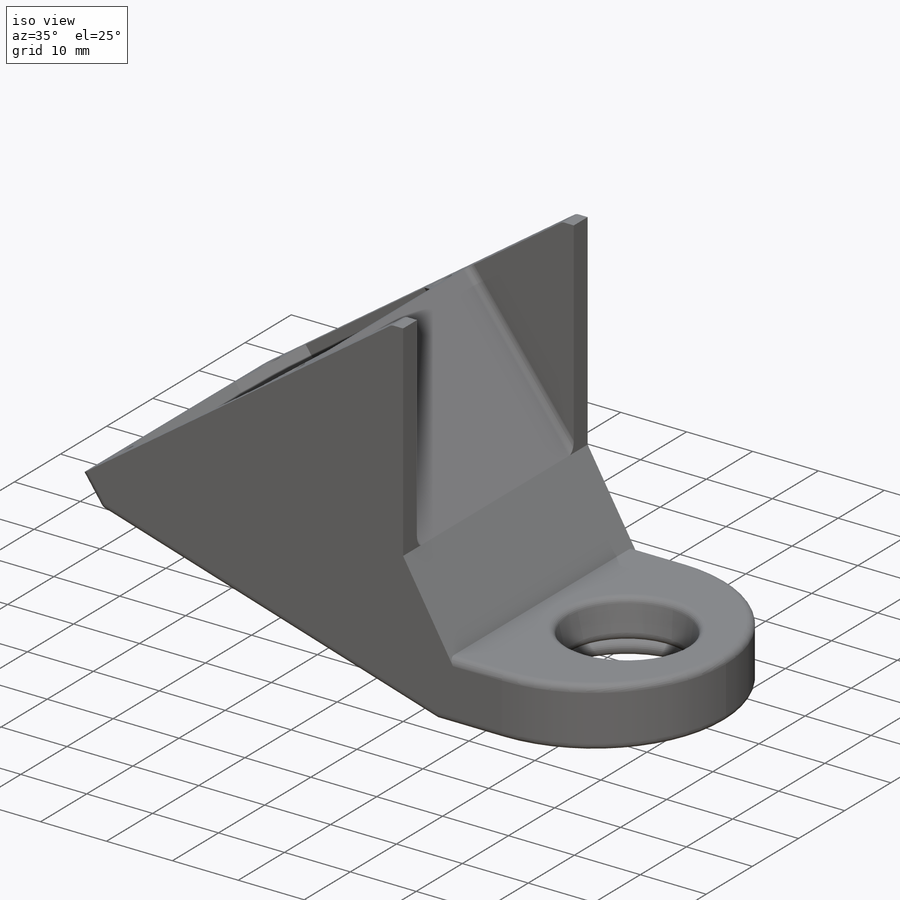
[diagram: iso view]
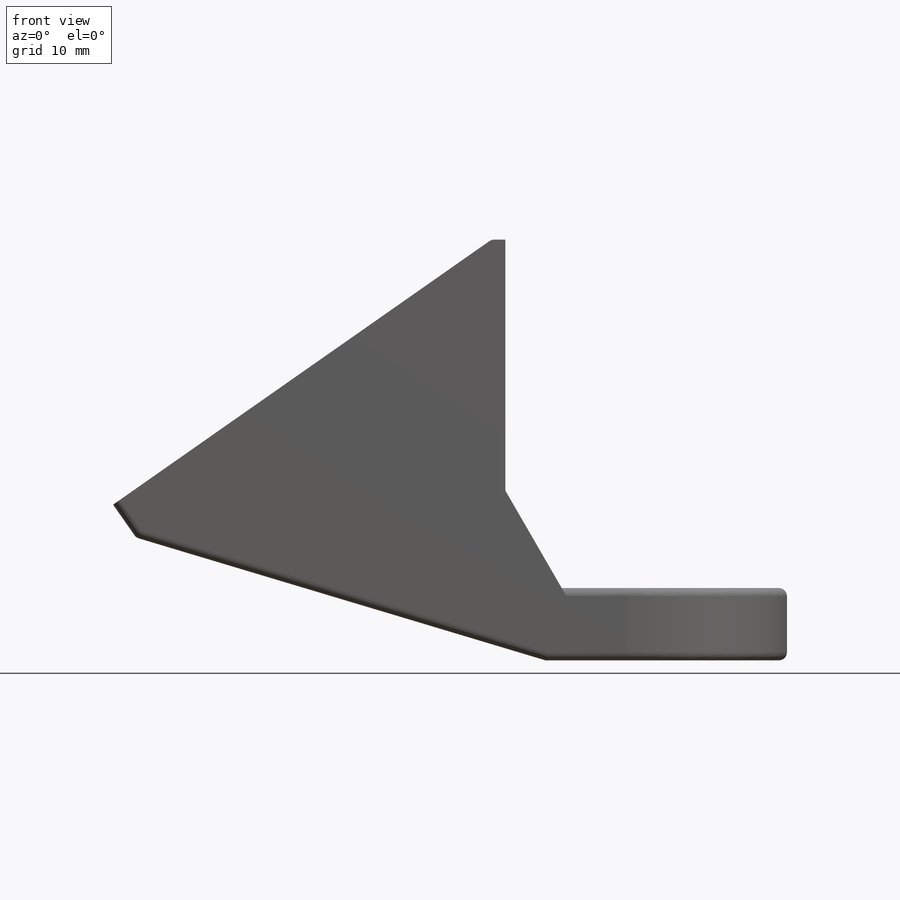
[diagram: front view]
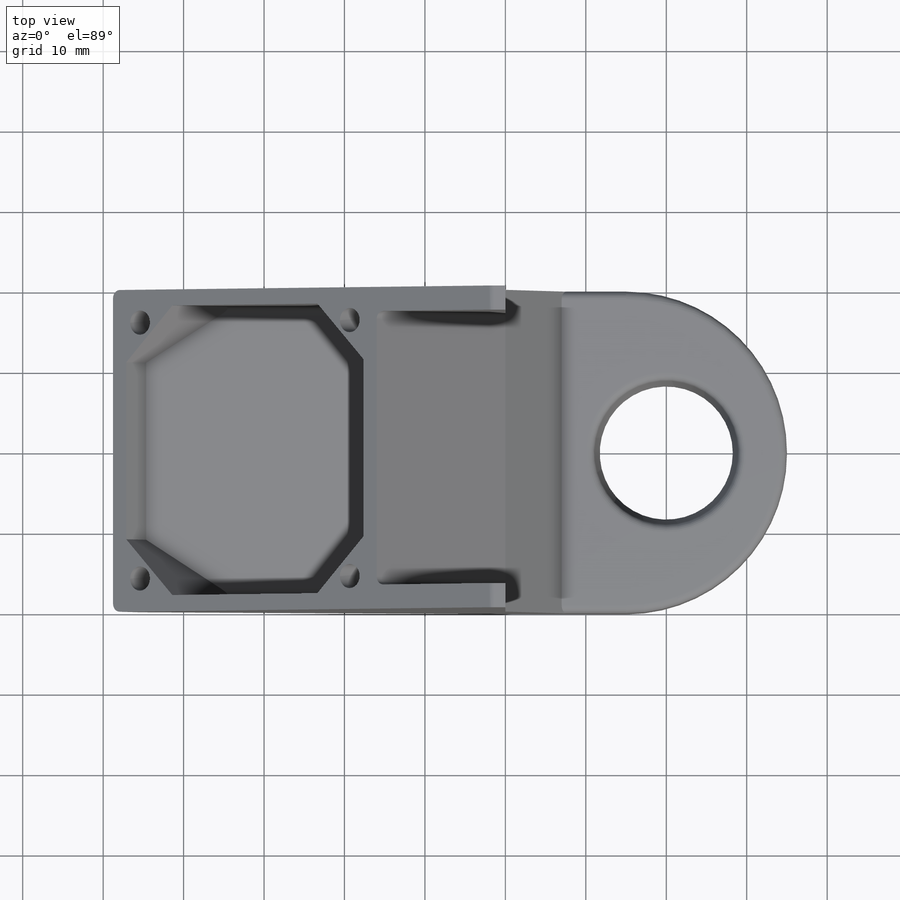
[diagram: top view]
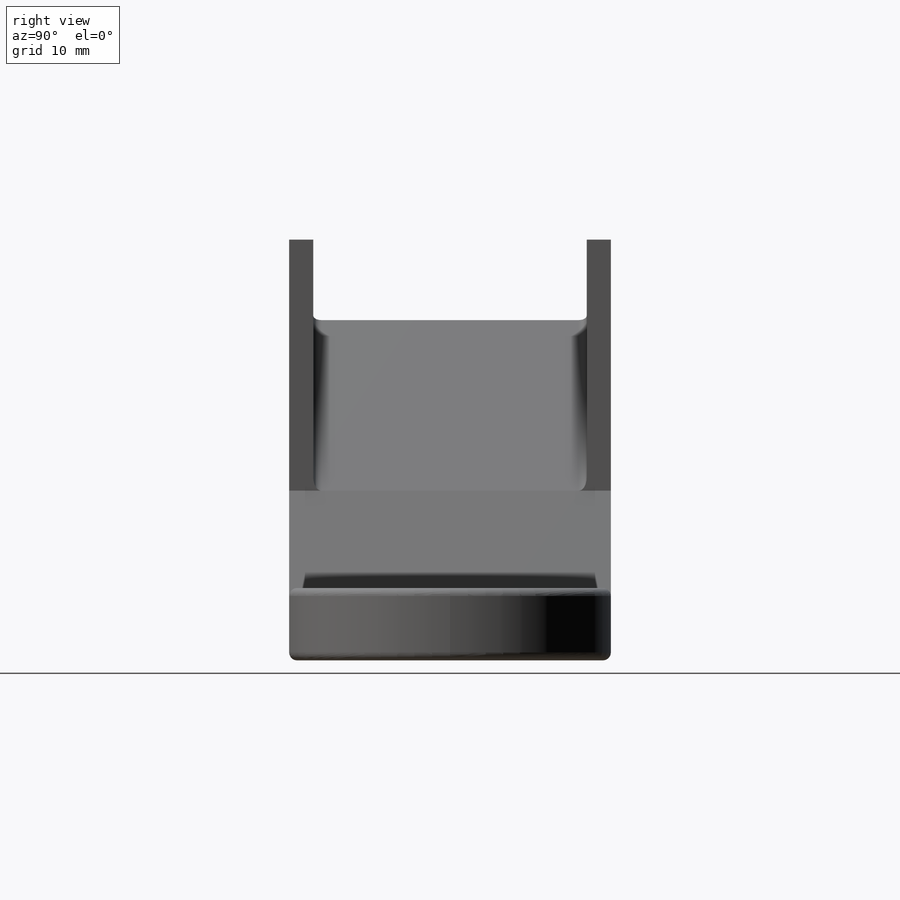
[diagram: right view]
SOLIDWORKS PART (.sldprt)
format: sldprt  version: not decoded by parser v0  size: 456,192 bytes
history: native  units: mm
features: sketch x6, fillet x4, cut_extrude x3, extrude x2, chamfer x2, material x1, shell x1, cut_revolve x1 (+13 scaffold rows collapsed)
feature tree (33):
  scaffold x13  (default folders/planes/origin — collapsed)
  material  "Material <not specified>"
  sketch  "Sketch1"  dims[c1.D1=20.0mm c1.D2=40.0mm c1.D3=10.0mm c1.D4=12.0mm c2.D1=40.0mm c2.D2=15.0mm c2.D3=1.5mm c2.D4=1.5mm c2.D5=15.0mm c2.D6=5.0mm c2.D7=10.0mm c2.D8=16.0mm c2.D9=1.0mm c2.D10=~32.649992mm c3.D10=55.0deg]
  extrude  "Boss-Extrude1"  Depth=20mm
  sketch  "Sketch4"  dims[c1.D1=2.0mm c1.D2=~2.739737mm c1.D3=2.0mm c1.D4=~43.604687mm c2.D1=40.0mm]
  cut_extrude  "Cut-Extrude3"  Depth=17mm
  fillet  "Fillet1"  Radius=20mm
  sketch  "Sketch2"  dims[D1=15.0mm]
  cut_extrude  "Cut-Extrude1"  [1 undecoded]
  shell  "Shell3"  Thickness=2mm
  sketch  "Sketch17"
  cut_revolve  "Cut-Revolve1"  Angle=360deg
  fillet  "Fillet5"  Radius=1mm
  sketch  "Sketch20"  dims[c1.D1=~3.122094mm c2.D1=45.0deg c2.D2=7.0mm]
  extrude  "Boss-Extrude23"  Depth=15mm
  chamfer  "Chamfer4"  Distance=7mm Angle=45deg
  chamfer  "Chamfer5"  Distance=5mm Angle=45deg
  sketch  "Sketch22"  dims[c1.D2=3.0mm c1.D1=~16.638002mm c2.D1=45.0deg c2.D3=~47.059376mm c3.D1=~38.916731mm c4.D1=45.0deg c4.D3=45.0mm]
  cut_extrude  "Cut-Extrude10"  Depth=5mm
  fillet  "Fillet7"  Radius=1mm
  fillet  "Fillet8"  Radius=1mm
decode coverage: 17 of 19 modeling features carry decoded parameters
note: ~ marks probable driven/reference dimensions
note: 1 parameter value undecoded
note: suppression state not decoded; provenance and decode notes live in map.json
